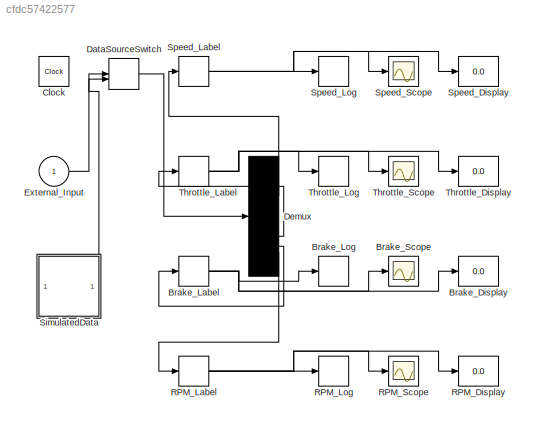
MODEL slx_cfdc57422577
KIND model
CONFIG AbsTol = auto
CONFIG EnableMultiTasking = off
CONFIG FixedStep = 0.1
CONFIG MaxStep = auto
CONFIG MinStep = auto
CONFIG RelTol = 1e-3
CONFIG SampleTimeConstraint = Unconstrained
CONFIG SolverName = FixedStepDiscrete
CONFIG StartTime = 0.0
CONFIG StopTime = 10.0
BLOCK [Display] Brake_Display
  Decimation = 1
BLOCK [SignalConversion] Brake_Label
  AttributesFormatString = Brake (%)
  OverrideOpt = off
BLOCK [ToWorkspace] Brake_Log
  FixptAsFi = on
  MaxDataPoints = inf
  SampleTime = -1
  VariableName = brake_log
BLOCK [Scope] Brake_Scope
  ActiveDisplayYMaximum = 56.249735290617117
  ActiveDisplayYMinimum = -6.2476176155540069
  Floating = off
  GraphicalSettings = {"Style":{"BackgroundColor":[0.12941176470588237,0.12941176470588237,0.12941176470588237],"AxesColor":[0.07058823529411765,0.07058823529411765,0.07058823529411765],"LabelsColor":[0.8509803921568627,0.8509803921568627,0.8509803921568627],"PreserveColors":false,"Visible":[true],"LineStyle":["-"],"LineWidth":[1.5],"BarWidth":[0.9],"LineColor":["auto"],"LineFaceAlpha":[1],"LineEdgeAlpha":[1],"Marker":...<+1989ch>
  MultipleDisplayCache = [{"MaxYLimMag":56.249735290617117,"MaxYLimReal":56.249735290617117,"MinYLimMag":0,"MinYLimReal":-6.2476176155540069,"PlotAsMagnitudePhase":false,"ShowGrid":true,"ShowLegend":false,"Title":"%<SignalLabel>","YLabel":""}]
  NumInputPorts = 1
  OpenAtSimulationStart = on
  ScopeFrameLocation = window
  Visible = on
  WasSavedAsWebScope = on
  WindowPosition = [1438.000000,508.000000,560.000000,420.000000,]
BLOCK [Clock] Clock
BLOCK [ManualSwitch] DataSourceSwitch
BLOCK [Demux] Demux
BLOCK [Inport] External_Input
BLOCK [Display] RPM_Display
  Decimation = 1
  Format = decimal (Stored Integer)
BLOCK [SignalConversion] RPM_Label
  AttributesFormatString = RPM
  OverrideOpt = off
BLOCK [ToWorkspace] RPM_Log
  FixptAsFi = on
  MaxDataPoints = inf
  SampleTime = -1
  VariableName = rpm_log
BLOCK [Scope] RPM_Scope
  ActiveDisplayYMaximum = 12610.909299647803
  ActiveDisplayYMinimum = 6376.5656333724664
  Floating = off
  GraphicalSettings = {"Style":{"BackgroundColor":[0.12941176470588237,0.12941176470588237,0.12941176470588237],"AxesColor":[0.07058823529411765,0.07058823529411765,0.07058823529411765],"LabelsColor":[0.8509803921568627,0.8509803921568627,0.8509803921568627],"PreserveColors":false,"Visible":[true],"LineStyle":["-"],"LineWidth":[1.5],"BarWidth":[0.9],"LineColor":["auto"],"LineFaceAlpha":[1],"LineEdgeAlpha":[1],"Marker":...<+2021ch>
  MultipleDisplayCache = [{"MaxYLimMag":12610.909299647803,"MaxYLimReal":12610.909299647803,"MinYLimMag":6376.5656333724664,"MinYLimReal":6376.5656333724664,"PlotAsMagnitudePhase":false,"ShowGrid":true,"ShowLegend":false,"Title":"%<SignalLabel>","YLabel":""}]
  NumInputPorts = 1
  OpenAtSimulationStart = on
  ScopeFrameLocation = window
  Visible = on
  WasSavedAsWebScope = on
  WindowPosition = [1439.000000,75.000000,560.000000,420.000000,]
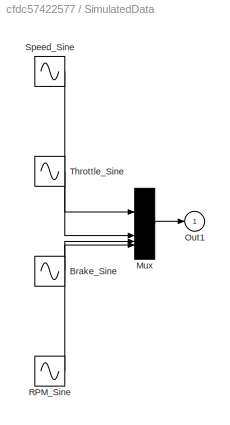
BLOCK [SubSystem] SimulatedData
BLOCK [Sin] SimulatedData/Brake_Sine
  Amplitude = 50
  Bias = 50
  Frequency = 0.2
  Phase = pi
  SampleTime = 0.1
BLOCK [Mux] SimulatedData/Mux
  DisplayOption = bar
BLOCK [Outport] SimulatedData/Out1
BLOCK [Sin] SimulatedData/RPM_Sine
  Amplitude = 5000
  Bias = 7000
  Frequency = 0.15
  SampleTime = 0.1
BLOCK [Sin] SimulatedData/Speed_Sine
  Amplitude = 100
  Bias = 100
  Frequency = 0.1
  SampleTime = 0.1
BLOCK [Sin] SimulatedData/Throttle_Sine
  Amplitude = 50
  Bias = 50
  Frequency = 0.2
  Phase = pi/2
  SampleTime = 0.1
BLOCK [Display] Speed_Display
  Decimation = 1
BLOCK [SignalConversion] Speed_Label
  AttributesFormatString = Speed (km/h)
  OverrideOpt = off
BLOCK [ToWorkspace] Speed_Log
  FixptAsFi = on
  MaxDataPoints = inf
  SampleTime = -1
  VariableName = speed_log
BLOCK [Scope] Speed_Scope
  ActiveDisplayYMaximum = 194.66548579088823
  ActiveDisplayYMinimum = 89.481612689901311
  Floating = off
  GraphicalSettings = {"Style":{"BackgroundColor":[0.12941176470588237,0.12941176470588237,0.12941176470588237],"AxesColor":[0.07058823529411765,0.07058823529411765,0.07058823529411765],"LabelsColor":[0.8509803921568627,0.8509803921568627,0.8509803921568627],"PreserveColors":false,"Visible":[true],"LineStyle":["-"],"LineWidth":[1.5],"BarWidth":[0.9],"LineColor":["auto"],"LineFaceAlpha":[1],"LineEdgeAlpha":[1],"Marker":...<+2023ch>
  MultipleDisplayCache = [{"MaxYLimMag":194.66548579088823,"MaxYLimReal":194.66548579088823,"MinYLimMag":89.481612689901311,"MinYLimReal":89.481612689901311,"PlotAsMagnitudePhase":false,"ShowGrid":true,"ShowLegend":false,"Title":"%<SignalLabel>","YLabel":""}]
  NumInputPorts = 1
  OpenAtSimulationStart = on
  ScopeFrameLocation = window
  Visible = on
  WasSavedAsWebScope = on
  WindowPosition = [865.000000,507.000000,560.000000,420.000000,]
BLOCK [Display] Throttle_Display
  Decimation = 1
BLOCK [SignalConversion] Throttle_Label
  AttributesFormatString = Throttle (%)
  OverrideOpt = off
BLOCK [ToWorkspace] Throttle_Log
  FixptAsFi = on
  MaxDataPoints = inf
  SampleTime = -1
  VariableName = throttle_log
BLOCK [Scope] Throttle_Scope
  ActiveDisplayYMaximum = 108.85091772841963
  ActiveDisplayYMinimum = 20.341740444223273
  Floating = off
  GraphicalSettings = {"Style":{"BackgroundColor":[0.12941176470588237,0.12941176470588237,0.12941176470588237],"AxesColor":[0.07058823529411765,0.07058823529411765,0.07058823529411765],"LabelsColor":[0.8509803921568627,0.8509803921568627,0.8509803921568627],"PreserveColors":false,"Visible":[true],"LineStyle":["-"],"LineWidth":[1.5],"BarWidth":[0.9],"LineColor":["auto"],"LineFaceAlpha":[1],"LineEdgeAlpha":[1],"Marker":...<+2030ch>
  MultipleDisplayCache = [{"MaxYLimMag":108.85091772841963,"MaxYLimReal":108.85091772841963,"MinYLimMag":20.341740444223273,"MinYLimReal":20.341740444223273,"PlotAsMagnitudePhase":false,"ShowGrid":true,"ShowLegend":false,"Title":"%<SignalLabel>","YLabel":""}]
  NumInputPorts = 1
  OpenAtSimulationStart = on
  ScopeFrameLocation = window
  Visible = on
  WasSavedAsWebScope = on
  WindowPosition = [865.000000,77.000000,560.000000,420.000000,]
NET Brake_Label:1 -> Brake_Display:1, Brake_Log:1, Brake_Scope:1
LINE DataSourceSwitch:1 -> Demux:1
LINE Demux:1 -> Speed_Label:1
LINE Demux:2 -> Throttle_Label:1
LINE Demux:3 -> Brake_Label:1
LINE Demux:4 -> RPM_Label:1
LINE External_Input:1 -> DataSourceSwitch:2
NET RPM_Label:1 -> RPM_Display:1, RPM_Log:1, RPM_Scope:1
LINE SimulatedData/Brake_Sine:1 -> SimulatedData/Mux:3
LINE SimulatedData/Mux:1 -> SimulatedData/Out1:1
LINE SimulatedData/RPM_Sine:1 -> SimulatedData/Mux:4
LINE SimulatedData/Speed_Sine:1 -> SimulatedData/Mux:1
LINE SimulatedData/Throttle_Sine:1 -> SimulatedData/Mux:2
LINE SimulatedData:1 -> DataSourceSwitch:1
NET Speed_Label:1 -> Speed_Display:1, Speed_Log:1, Speed_Scope:1
NET Throttle_Label:1 -> Throttle_Display:1, Throttle_Log:1, Throttle_Scope:1
note: NET lines group one-source signal fan-out (src -> all destinations, sorted); 1:1 wires keep LINE
